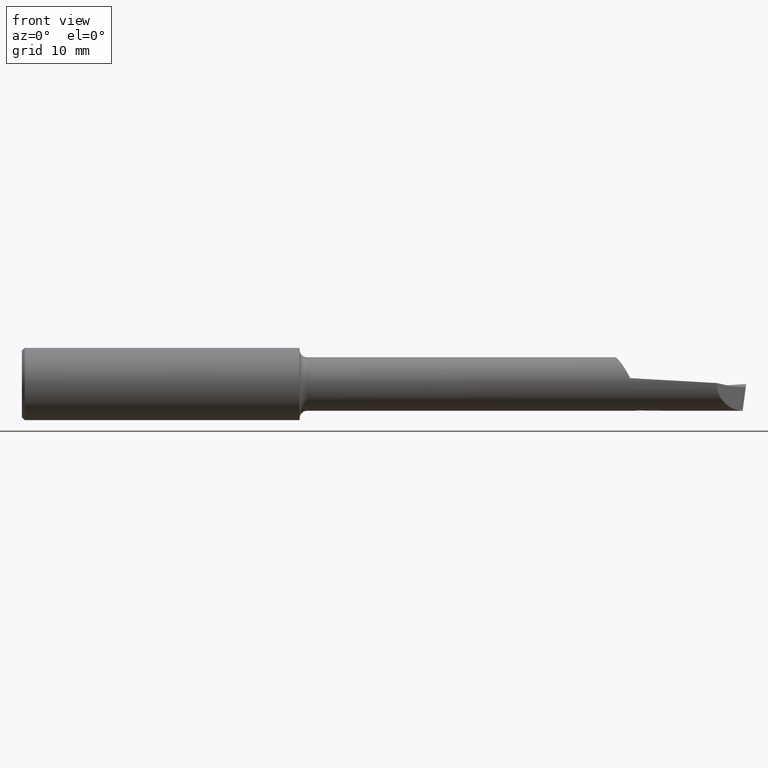
[diagram: clean part render]
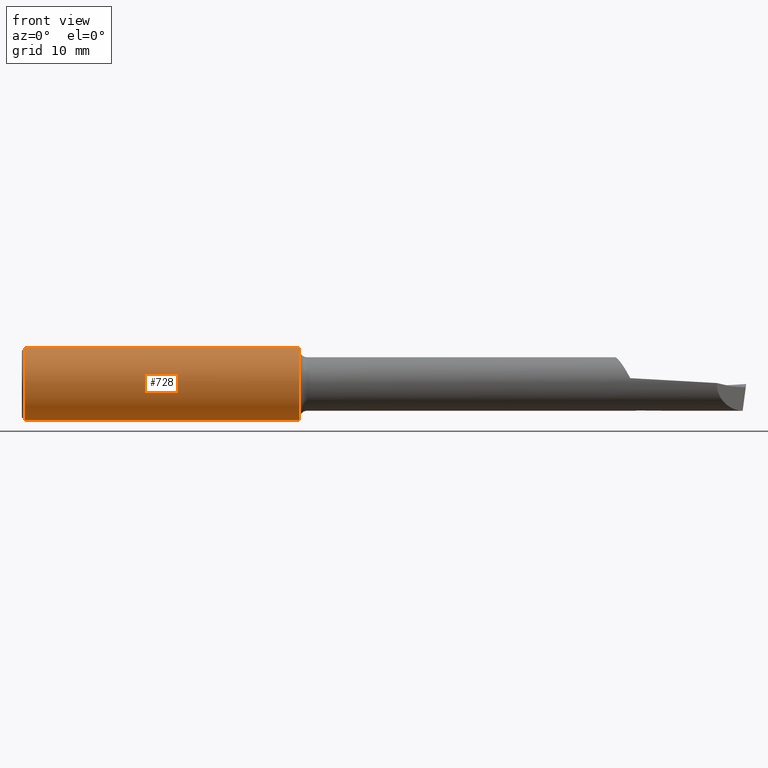
[diagram: same view with one face highlighted and labeled with its STEP entity id]
A machine part, front view. The second image highlights one B-rep face of the part: STEP entity #728.
In plain terms, the highlighted cylindrical surface (edge-blend (fillet) strip) has radius 3.1712 mm, axis along (-1, -0, -0).
Its self-contained STEP definition (entity closure, byte-faithful):
#3 = CARTESIAN_POINT ( 'NONE',  ( 0.9588951354882120359, 1.528971528735470422E-17, -0.1248500000000000026 ) ) ;
#23 = VECTOR ( 'NONE', #345, 39.37007874015748143 ) ;
#27 = VERTEX_POINT ( 'NONE', #518 ) ;
#40 = DIRECTION ( 'NONE',  ( 1.000000000000000000, 0.000000000000000000, 0.000000000000000000 ) ) ;
#65 = ORIENTED_EDGE ( 'NONE', *, *, #393, .F. ) ;
#90 = ORIENTED_EDGE ( 'NONE', *, *, #241, .F. ) ;
#107 = CIRCLE ( 'NONE', #242, 0.1248500000000000026 ) ;
#124 = CARTESIAN_POINT ( 'NONE',  ( 0.000000000000000000, 0.000000000000000000, 0.000000000000000000 ) ) ;
#131 = CARTESIAN_POINT ( 'NONE',  ( 0.000000000000000000, 1.528971528735470422E-17, -0.1248500000000000026 ) ) ;
#143 = CARTESIAN_POINT ( 'NONE',  ( 0.009999999999999993269, 0.000000000000000000, 0.000000000000000000 ) ) ;
#156 = CARTESIAN_POINT ( 'NONE',  ( 0.009999999999999993269, 1.528971528735470422E-17, -0.1248500000000000026 ) ) ;
#167 = AXIS2_PLACEMENT_3D ( 'NONE', #124, #541, #231 ) ;
#212 = CARTESIAN_POINT ( 'NONE',  ( 0.9588951354882120359, 0.000000000000000000, 0.1248500000000000026 ) ) ;
#229 = EDGE_LOOP ( 'NONE', ( #90, #65, #275, #306 ) ) ;
#231 = DIRECTION ( 'NONE',  ( 0.000000000000000000, 0.000000000000000000, 1.000000000000000000 ) ) ;
#241 = EDGE_CURVE ( 'NONE', #652, #572, #552, .T. ) ;
#242 = AXIS2_PLACEMENT_3D ( 'NONE', #690, #40, #628 ) ;
#275 = ORIENTED_EDGE ( 'NONE', *, *, #534, .T. ) ;
#306 = ORIENTED_EDGE ( 'NONE', *, *, #456, .F. ) ;
#336 = DIRECTION ( 'NONE',  ( -1.000000000000000000, -0.000000000000000000, -0.000000000000000000 ) ) ;
#338 = CIRCLE ( 'NONE', #553, 0.1248500000000000026 ) ;
#345 = DIRECTION ( 'NONE',  ( -1.000000000000000000, -0.000000000000000000, -0.000000000000000000 ) ) ;
#393 = EDGE_CURVE ( 'NONE', #557, #652, #107, .T. ) ;
#434 = CYLINDRICAL_SURFACE ( 'NONE', #167, 0.1248500000000000026 ) ;
#456 = EDGE_CURVE ( 'NONE', #572, #27, #338, .T. ) ;
#464 = CARTESIAN_POINT ( 'NONE',  ( 0.000000000000000000, 0.000000000000000000, 0.1248500000000000026 ) ) ;
#493 = DIRECTION ( 'NONE',  ( -1.000000000000000000, -0.000000000000000000, -0.000000000000000000 ) ) ;
#518 = CARTESIAN_POINT ( 'NONE',  ( 0.009999999999999993269, 0.000000000000000000, 0.1248500000000000026 ) ) ;
#534 = EDGE_CURVE ( 'NONE', #557, #27, #578, .T. ) ;
#541 = DIRECTION ( 'NONE',  ( -1.000000000000000000, -0.000000000000000000, -0.000000000000000000 ) ) ;
#552 = LINE ( 'NONE', #131, #653 ) ;
#553 = AXIS2_PLACEMENT_3D ( 'NONE', #143, #336, #753 ) ;
#557 = VERTEX_POINT ( 'NONE', #212 ) ;
#572 = VERTEX_POINT ( 'NONE', #156 ) ;
#578 = LINE ( 'NONE', #464, #23 ) ;
#628 = DIRECTION ( 'NONE',  ( 0.000000000000000000, 0.000000000000000000, -1.000000000000000000 ) ) ;
#652 = VERTEX_POINT ( 'NONE', #3 ) ;
#653 = VECTOR ( 'NONE', #493, 39.37007874015748143 ) ;
#690 = CARTESIAN_POINT ( 'NONE',  ( 0.9588951354882120359, 0.000000000000000000, 0.000000000000000000 ) ) ;
#725 = FACE_OUTER_BOUND ( 'NONE', #229, .T. ) ;
#728 = ADVANCED_FACE ( 'NONE', ( #725 ), #434, .T. ) ;
#753 = DIRECTION ( 'NONE',  ( 0.000000000000000000, 0.000000000000000000, 1.000000000000000000 ) ) ;